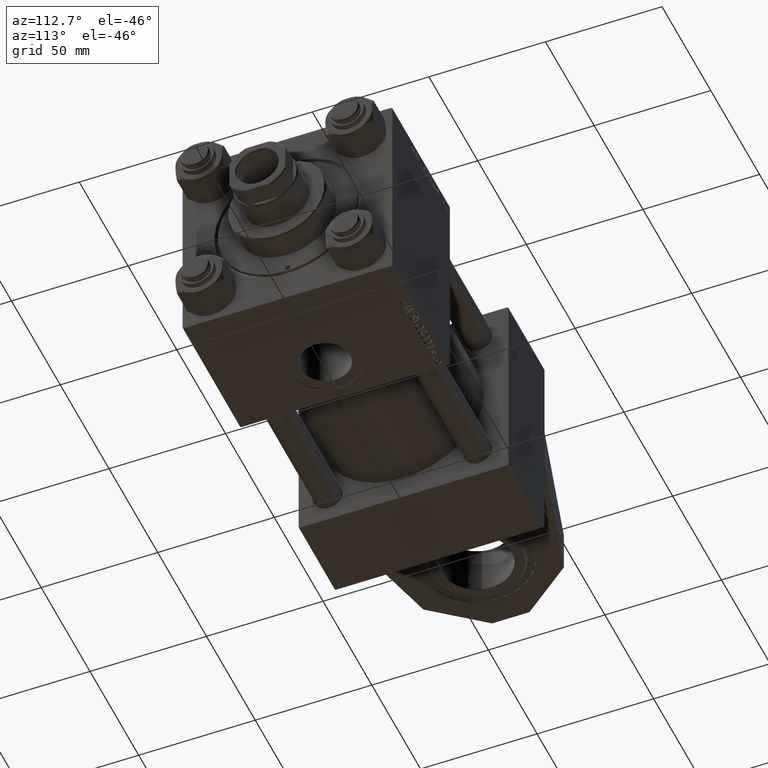
[diagram: clean part render]
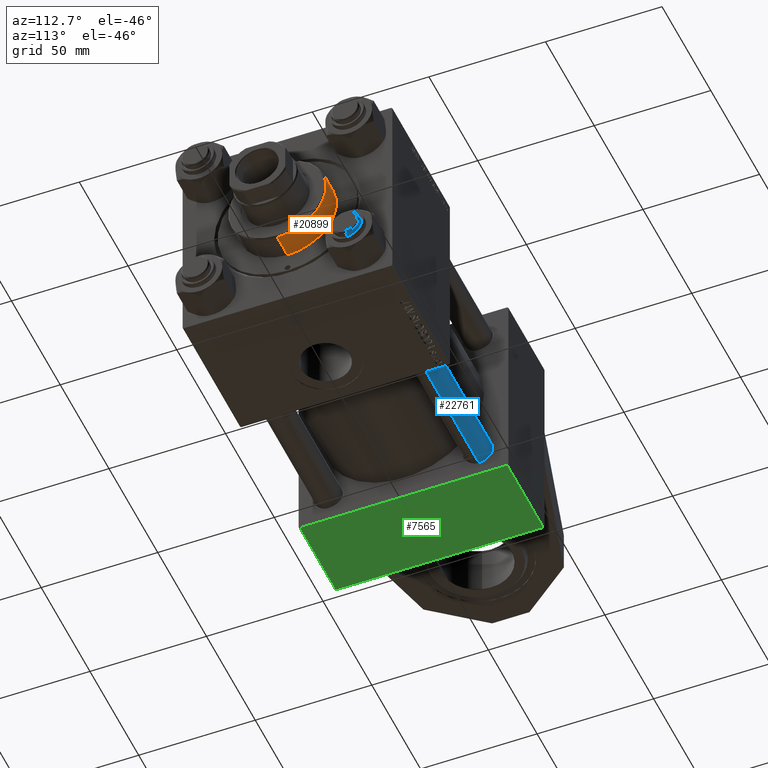
[diagram: same view with three faces highlighted in distinct colors, each labeled with its STEP entity id]
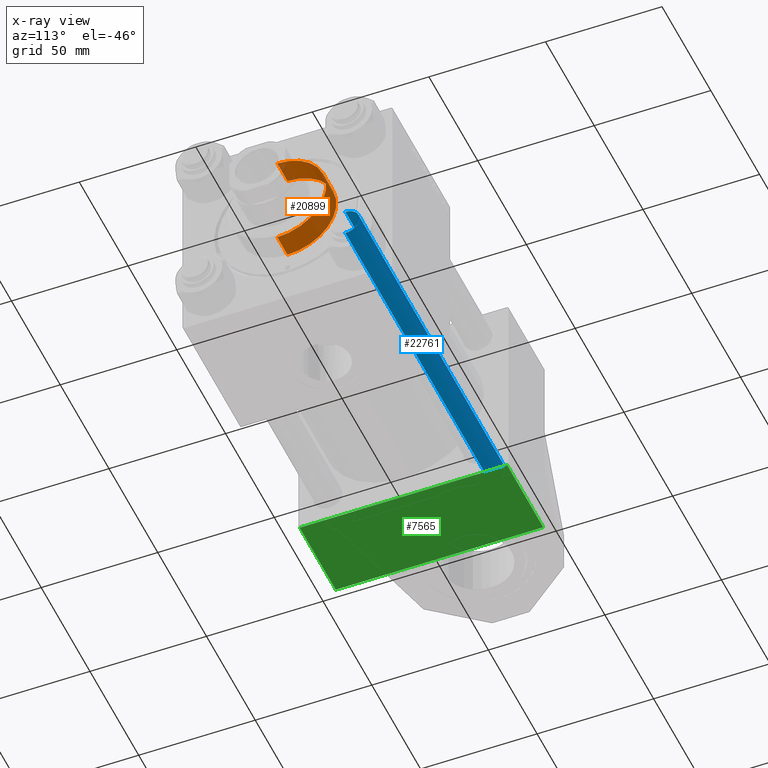
[diagram: x-ray of the same camera — body ghosted, the three highlighted faces saturated]
A machine part, auxiliary view with three faces highlighted in distinct colors.
The next image is the same camera in x-ray (body ghosted, the three faces saturated) — at least one of them is partly hidden behind the body in this view.
Their STEP definitions:

[orange] entity #20899 — the highlighted cylindrical surface (partial cylindrical patch) has radius 21 mm, axis along (-1, -0, 0).
#224 = EDGE_CURVE ( 'NONE', #17409, #29797, #1766, .T. ) ;
#1766 = LINE ( 'NONE', #39886, #25790 ) ;
#3337 = ORIENTED_EDGE ( 'NONE', *, *, #45263, .T. ) ;
#4797 = CIRCLE ( 'NONE', #21841, 21.00000000000000000 ) ;
#5487 = CIRCLE ( 'NONE', #24960, 21.00000000000000000 ) ;
#7126 = ORIENTED_EDGE ( 'NONE', *, *, #37495, .T. ) ;
#8761 = CARTESIAN_POINT ( 'NONE',  ( -21.00000000000000000, 0.000000000000000000, 26.69999999999999929 ) ) ;
#9175 = ORIENTED_EDGE ( 'NONE', *, *, #31543, .F. ) ;
#9450 = EDGE_LOOP ( 'NONE', ( #3337, #10169, #7126, #9175 ) ) ;
#9587 = CARTESIAN_POINT ( 'NONE',  ( 0.000000000000000000, 0.000000000000000000, 26.69999999999999929 ) ) ;
#10169 = ORIENTED_EDGE ( 'NONE', *, *, #224, .T. ) ;
#17049 = DIRECTION ( 'NONE',  ( 0.000000000000000000, 0.000000000000000000, -1.000000000000000000 ) ) ;
#17409 = VERTEX_POINT ( 'NONE', #19696 ) ;
#19696 = CARTESIAN_POINT ( 'NONE',  ( 21.00000000000000000, 2.571758278209441661E-15, 37.19999999999999574 ) ) ;
#20601 = CARTESIAN_POINT ( 'NONE',  ( 0.000000000000000000, 0.000000000000000000, 37.19999999999999574 ) ) ;
#20899 = ADVANCED_FACE ( 'NONE', ( #34800 ), #35299, .T. ) ;
#21841 = AXIS2_PLACEMENT_3D ( 'NONE', #20601, #17049, #36590 ) ;
#24960 = AXIS2_PLACEMENT_3D ( 'NONE', #9587, #25085, #40571 ) ;
#25085 = DIRECTION ( 'NONE',  ( 0.000000000000000000, 0.000000000000000000, 1.000000000000000000 ) ) ;
#25790 = VECTOR ( 'NONE', #28711, 1000.000000000000000 ) ;
#26499 = CARTESIAN_POINT ( 'NONE',  ( 21.00000000000000000, 2.571758278209441661E-15, 26.69999999999999929 ) ) ;
#28711 = DIRECTION ( 'NONE',  ( -0.000000000000000000, -0.000000000000000000, -1.000000000000000000 ) ) ;
#29797 = VERTEX_POINT ( 'NONE', #26499 ) ;
#31543 = EDGE_CURVE ( 'NONE', #41607, #43130, #32122, .T. ) ;
#32122 = LINE ( 'NONE', #47609, #40998 ) ;
#34800 = FACE_OUTER_BOUND ( 'NONE', #9450, .T. ) ;
#35299 = CYLINDRICAL_SURFACE ( 'NONE', #41727, 21.00000000000000000 ) ;
#36590 = DIRECTION ( 'NONE',  ( 1.000000000000000000, 0.000000000000000000, 0.000000000000000000 ) ) ;
#37495 = EDGE_CURVE ( 'NONE', #29797, #43130, #5487, .T. ) ;
#39886 = CARTESIAN_POINT ( 'NONE',  ( 21.00000000000000000, 2.571758278209441661E-15, 37.69999999999999574 ) ) ;
#40571 = DIRECTION ( 'NONE',  ( 1.000000000000000000, 0.000000000000000000, 0.000000000000000000 ) ) ;
#40998 = VECTOR ( 'NONE', #43781, 1000.000000000000000 ) ;
#41607 = VERTEX_POINT ( 'NONE', #43417 ) ;
#41727 = AXIS2_PLACEMENT_3D ( 'NONE', #46987, #42913, #42164 ) ;
#42164 = DIRECTION ( 'NONE',  ( -1.000000000000000000, 0.000000000000000000, 0.000000000000000000 ) ) ;
#42913 = DIRECTION ( 'NONE',  ( -0.000000000000000000, -0.000000000000000000, -1.000000000000000000 ) ) ;
#43130 = VERTEX_POINT ( 'NONE', #8761 ) ;
#43417 = CARTESIAN_POINT ( 'NONE',  ( -21.00000000000000000, 0.000000000000000000, 37.19999999999999574 ) ) ;
#43781 = DIRECTION ( 'NONE',  ( -0.000000000000000000, -0.000000000000000000, -1.000000000000000000 ) ) ;
#45263 = EDGE_CURVE ( 'NONE', #41607, #17409, #4797, .T. ) ;
#46987 = CARTESIAN_POINT ( 'NONE',  ( 0.000000000000000000, 0.000000000000000000, 37.69999999999999574 ) ) ;
#47609 = CARTESIAN_POINT ( 'NONE',  ( -21.00000000000000000, 0.000000000000000000, 37.69999999999999574 ) ) ;

[blue] entity #22761 — the highlighted cylindrical surface (edge-blend (fillet) strip) has radius 6 mm, axis along (-1, -0, 0).
#532 = VECTOR ( 'NONE', #39065, 1000.000000000000000 ) ;
#960 = CARTESIAN_POINT ( 'NONE',  ( 6.000000000000000888, 7.347880794884120722E-16, 0.5000000000000004441 ) ) ;
#2453 = DIRECTION ( 'NONE',  ( -0.000000000000000000, -0.000000000000000000, -1.000000000000000000 ) ) ;
#3745 = DIRECTION ( 'NONE',  ( 1.000000000000000000, 0.000000000000000000, 0.000000000000000000 ) ) ;
#3769 = DIRECTION ( 'NONE',  ( -0.000000000000000000, -0.000000000000000000, -1.000000000000000000 ) ) ;
#4800 = EDGE_CURVE ( 'NONE', #5816, #10860, #32422, .T. ) ;
#5816 = VERTEX_POINT ( 'NONE', #39898 ) ;
#7837 = FACE_OUTER_BOUND ( 'NONE', #11603, .T. ) ;
#7972 = DIRECTION ( 'NONE',  ( 0.000000000000000000, 0.000000000000000000, -1.000000000000000000 ) ) ;
#10860 = VERTEX_POINT ( 'NONE', #17908 ) ;
#11112 = ORIENTED_EDGE ( 'NONE', *, *, #34569, .T. ) ;
#11603 = EDGE_LOOP ( 'NONE', ( #27930, #13241, #11112, #12635 ) ) ;
#11645 = DIRECTION ( 'NONE',  ( -1.000000000000000000, 0.000000000000000000, 0.000000000000000000 ) ) ;
#12635 = ORIENTED_EDGE ( 'NONE', *, *, #35665, .F. ) ;
#13241 = ORIENTED_EDGE ( 'NONE', *, *, #16088, .T. ) ;
#14445 = CARTESIAN_POINT ( 'NONE',  ( 0.000000000000000000, 0.000000000000000000, 150.0000000000000000 ) ) ;
#14829 = VECTOR ( 'NONE', #2453, 1000.000000000000000 ) ;
#15100 = CARTESIAN_POINT ( 'NONE',  ( 0.000000000000000000, 0.000000000000000000, 149.5000000000000000 ) ) ;
#15880 = AXIS2_PLACEMENT_3D ( 'NONE', #14445, #3769, #11645 ) ;
#15961 = CARTESIAN_POINT ( 'NONE',  ( -6.000000000000000888, 0.000000000000000000, 150.0000000000000000 ) ) ;
#16088 = EDGE_CURVE ( 'NONE', #10860, #19022, #49199, .T. ) ;
#17908 = CARTESIAN_POINT ( 'NONE',  ( 6.000000000000000888, 7.347880794884120722E-16, 149.5000000000000000 ) ) ;
#17957 = CARTESIAN_POINT ( 'NONE',  ( 6.000000000000000888, 7.347880794884120722E-16, 150.0000000000000000 ) ) ;
#19022 = VERTEX_POINT ( 'NONE', #960 ) ;
#22583 = CYLINDRICAL_SURFACE ( 'NONE', #15880, 6.000000000000000888 ) ;
#22761 = ADVANCED_FACE ( 'NONE', ( #7837 ), #22583, .T. ) ;
#23581 = LINE ( 'NONE', #15961, #532 ) ;
#27930 = ORIENTED_EDGE ( 'NONE', *, *, #4800, .T. ) ;
#32160 = CIRCLE ( 'NONE', #32951, 6.000000000000000888 ) ;
#32422 = CIRCLE ( 'NONE', #46239, 6.000000000000000888 ) ;
#32951 = AXIS2_PLACEMENT_3D ( 'NONE', #33737, #42103, #3745 ) ;
#33737 = CARTESIAN_POINT ( 'NONE',  ( 0.000000000000000000, 0.000000000000000000, 0.5000000000000004441 ) ) ;
#34569 = EDGE_CURVE ( 'NONE', #19022, #35470, #32160, .T. ) ;
#35470 = VERTEX_POINT ( 'NONE', #48758 ) ;
#35665 = EDGE_CURVE ( 'NONE', #5816, #35470, #23581, .T. ) ;
#39065 = DIRECTION ( 'NONE',  ( -0.000000000000000000, -0.000000000000000000, -1.000000000000000000 ) ) ;
#39457 = DIRECTION ( 'NONE',  ( 1.000000000000000000, 0.000000000000000000, 0.000000000000000000 ) ) ;
#39898 = CARTESIAN_POINT ( 'NONE',  ( -6.000000000000000888, 0.000000000000000000, 149.5000000000000000 ) ) ;
#42103 = DIRECTION ( 'NONE',  ( -0.000000000000000000, -0.000000000000000000, 1.000000000000000000 ) ) ;
#46239 = AXIS2_PLACEMENT_3D ( 'NONE', #15100, #7972, #39457 ) ;
#48758 = CARTESIAN_POINT ( 'NONE',  ( -6.000000000000000888, 0.000000000000000000, 0.5000000000000004441 ) ) ;
#49199 = LINE ( 'NONE', #17957, #14829 ) ;

[green] entity #7565 — the highlighted planar face has unit normal (0, -0, 1).
#993 = LINE ( 'NONE', #28428, #33203 ) ;
#2047 = VECTOR ( 'NONE', #32223, 1000.000000000000000 ) ;
#3272 = VERTEX_POINT ( 'NONE', #18024 ) ;
#3621 = DIRECTION ( 'NONE',  ( 0.000000000000000000, -7.709882115452478166E-17, 1.000000000000000000 ) ) ;
#3776 = LINE ( 'NONE', #11405, #44871 ) ;
#6403 = ORIENTED_EDGE ( 'NONE', *, *, #41676, .T. ) ;
#7565 = ADVANCED_FACE ( 'NONE', ( #33620 ), #18129, .F. ) ;
#8329 = CARTESIAN_POINT ( 'NONE',  ( 37.00000000000000000, -45.00000000000000711, 44.49999999999997158 ) ) ;
#9010 = ORIENTED_EDGE ( 'NONE', *, *, #26583, .F. ) ;
#9847 = LINE ( 'NONE', #13160, #2047 ) ;
#10460 = ORIENTED_EDGE ( 'NONE', *, *, #28268, .T. ) ;
#11405 = CARTESIAN_POINT ( 'NONE',  ( 37.00000000000000000, -45.00000000000000000, -44.49999999999998579 ) ) ;
#11688 = VERTEX_POINT ( 'NONE', #30914 ) ;
#13160 = CARTESIAN_POINT ( 'NONE',  ( 0.000000000000000000, -45.00000000000000711, 45.00000000000000000 ) ) ;
#14908 = ORIENTED_EDGE ( 'NONE', *, *, #16720, .T. ) ;
#14974 = DIRECTION ( 'NONE',  ( 0.000000000000000000, 7.709882115452476934E-17, -1.000000000000000000 ) ) ;
#16495 = DIRECTION ( 'NONE',  ( -1.000000000000000000, 0.000000000000000000, 0.000000000000000000 ) ) ;
#16603 = VECTOR ( 'NONE', #14974, 1000.000000000000000 ) ;
#16720 = EDGE_CURVE ( 'NONE', #3272, #20029, #3776, .T. ) ;
#18024 = CARTESIAN_POINT ( 'NONE',  ( 0.000000000000000000, -45.00000000000000000, -44.49999999999995737 ) ) ;
#18129 = PLANE ( 'NONE',  #26005 ) ;
#18382 = CARTESIAN_POINT ( 'NONE',  ( 37.00000000000000000, -45.00000000000000711, 45.00000000000000000 ) ) ;
#18633 = DIRECTION ( 'NONE',  ( -0.000000000000000000, 1.000000000000000000, 7.709882115452478166E-17 ) ) ;
#20029 = VERTEX_POINT ( 'NONE', #27985 ) ;
#22353 = CARTESIAN_POINT ( 'NONE',  ( 37.00000000000000000, -45.00000000000000711, 45.00000000000000000 ) ) ;
#26005 = AXIS2_PLACEMENT_3D ( 'NONE', #18382, #18633, #3621 ) ;
#26583 = EDGE_CURVE ( 'NONE', #46744, #20029, #34025, .T. ) ;
#27985 = CARTESIAN_POINT ( 'NONE',  ( 37.00000000000000000, -45.00000000000000000, -44.49999999999995737 ) ) ;
#28268 = EDGE_CURVE ( 'NONE', #11688, #3272, #9847, .T. ) ;
#28428 = CARTESIAN_POINT ( 'NONE',  ( 37.00000000000000000, -45.00000000000000711, 44.49999999999997158 ) ) ;
#30914 = CARTESIAN_POINT ( 'NONE',  ( 0.000000000000000000, -45.00000000000000711, 44.49999999999997158 ) ) ;
#32223 = DIRECTION ( 'NONE',  ( 0.000000000000000000, 7.709882115452476934E-17, -1.000000000000000000 ) ) ;
#33203 = VECTOR ( 'NONE', #16495, 1000.000000000000000 ) ;
#33620 = FACE_OUTER_BOUND ( 'NONE', #41073, .T. ) ;
#34025 = LINE ( 'NONE', #22353, #16603 ) ;
#41073 = EDGE_LOOP ( 'NONE', ( #10460, #14908, #9010, #6403 ) ) ;
#41676 = EDGE_CURVE ( 'NONE', #46744, #11688, #993, .T. ) ;
#42884 = DIRECTION ( 'NONE',  ( 1.000000000000000000, 0.000000000000000000, 0.000000000000000000 ) ) ;
#44871 = VECTOR ( 'NONE', #42884, 1000.000000000000000 ) ;
#46744 = VERTEX_POINT ( 'NONE', #8329 ) ;